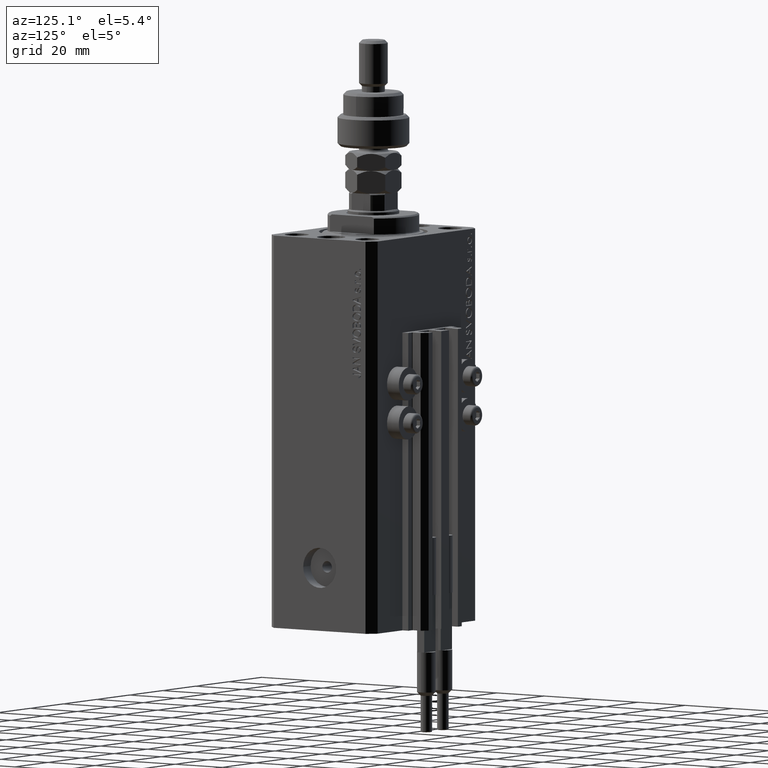
[diagram: clean part render]
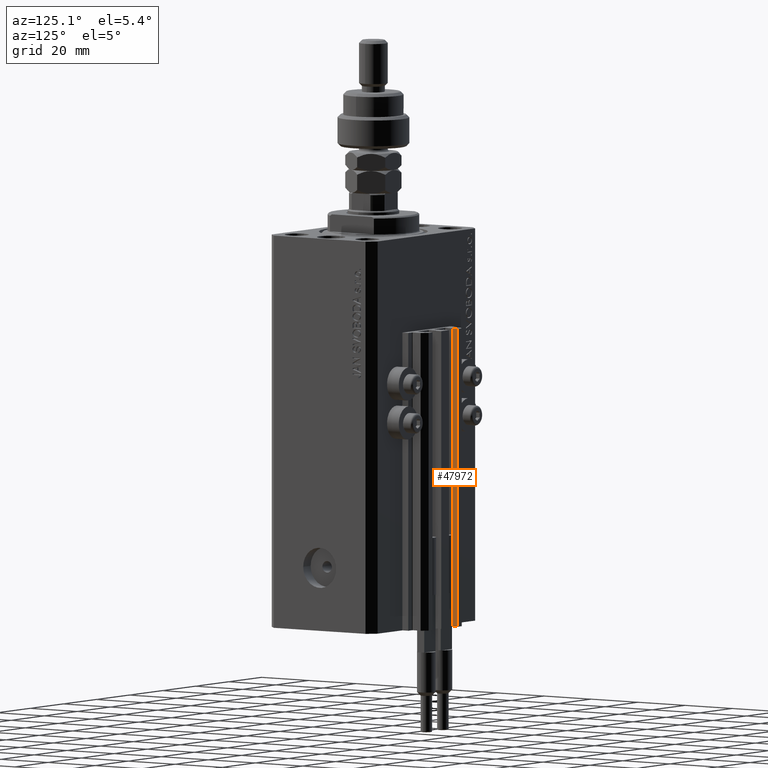
[diagram: same view with one face highlighted and labeled with its STEP entity id]
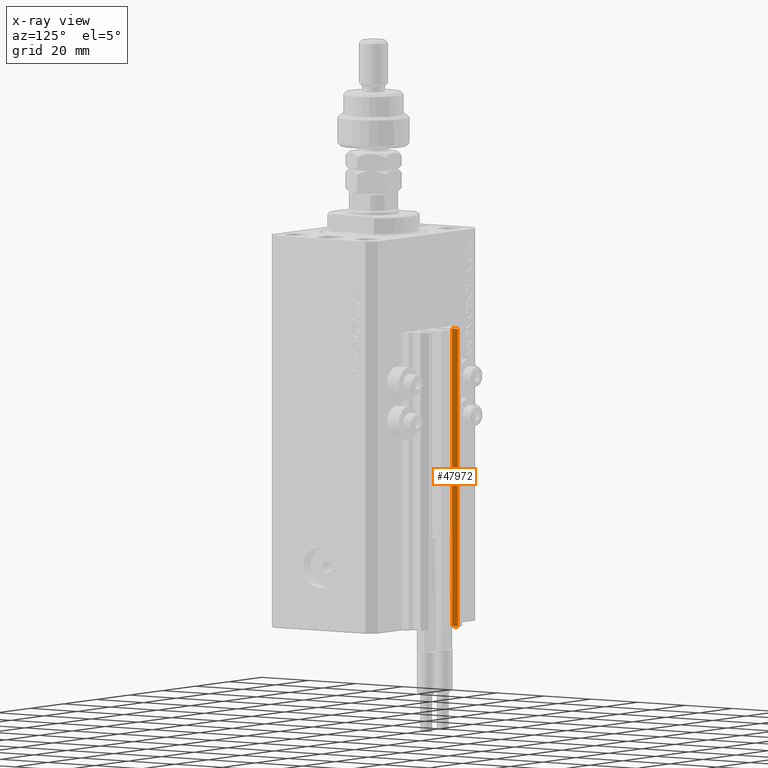
[diagram: x-ray of the same camera — body ghosted, the highlighted face saturated]
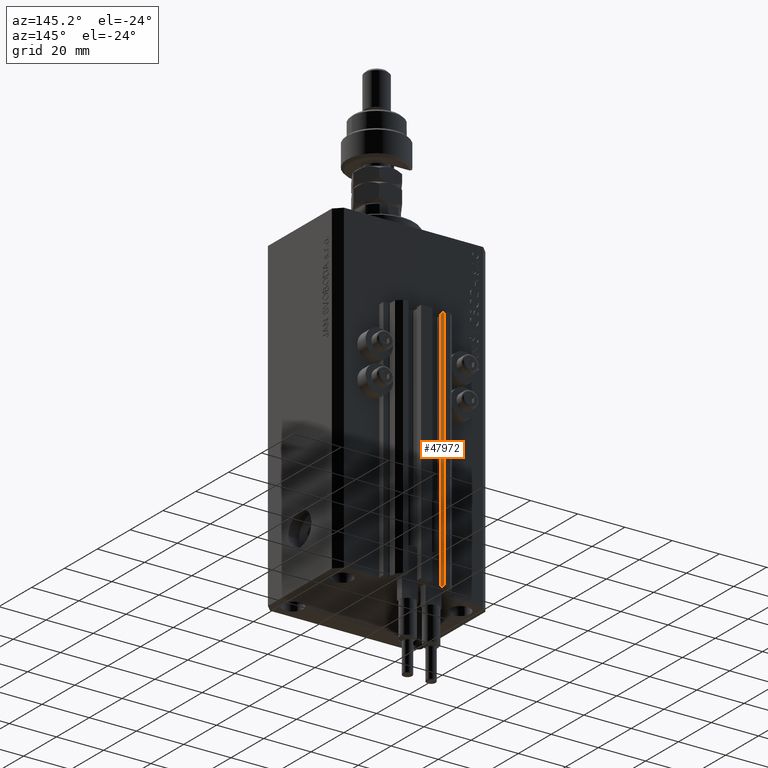
[diagram: same view with one face highlighted and labeled with its STEP entity id]
A machine part, auxiliary view. The second image highlights one B-rep face of the part: STEP entity #47972.
The next image is the same camera in x-ray: the body ghosted, the highlighted face saturated — about 0% of this face is hidden behind the body in this view.
A second angle (auxiliary view) of the same face is appended — the face is thin or edge-on in the first view.
In plain terms, the highlighted planar face has unit normal (1, 0, 0).
Its self-contained STEP definition (entity closure, byte-faithful):
#989 = CARTESIAN_POINT ( 'NONE',  ( -7.650000000000000355, 28.09999999999948628, -137.0000000000000000 ) ) ;
#2752 = DIRECTION ( 'NONE',  ( 0.000000000000000000, 0.000000000000000000, 1.000000000000000000 ) ) ;
#4240 = VECTOR ( 'NONE', #20257, 1000.000000000000000 ) ;
#4558 = VERTEX_POINT ( 'NONE', #14228 ) ;
#5295 = CARTESIAN_POINT ( 'NONE',  ( -7.650000000000000355, 30.49999999999948486, -33.00000000000000000 ) ) ;
#5353 = FACE_OUTER_BOUND ( 'NONE', #31506, .T. ) ;
#5961 = ORIENTED_EDGE ( 'NONE', *, *, #10646, .F. ) ;
#7359 = LINE ( 'NONE', #38216, #40151 ) ;
#8954 = DIRECTION ( 'NONE',  ( 1.000000000000000000, 0.000000000000000000, 0.000000000000000000 ) ) ;
#9411 = CARTESIAN_POINT ( 'NONE',  ( -7.650000000000000355, 28.09999999999948628, -33.00000000000000000 ) ) ;
#10646 = EDGE_CURVE ( 'NONE', #27830, #39130, #39308, .T. ) ;
#10754 = EDGE_CURVE ( 'NONE', #27830, #4558, #41079, .T. ) ;
#10924 = VECTOR ( 'NONE', #48250, 1000.000000000000000 ) ;
#14228 = CARTESIAN_POINT ( 'NONE',  ( -7.650000000000000355, 30.49999999999948486, -137.0000000000000000 ) ) ;
#18809 = ORIENTED_EDGE ( 'NONE', *, *, #40724, .F. ) ;
#20257 = DIRECTION ( 'NONE',  ( 0.000000000000000000, 0.000000000000000000, 1.000000000000000000 ) ) ;
#24639 = DIRECTION ( 'NONE',  ( 0.000000000000000000, 0.000000000000000000, -1.000000000000000000 ) ) ;
#25136 = CARTESIAN_POINT ( 'NONE',  ( -7.650000000000000355, 28.09999999999948628, -137.0000000000000000 ) ) ;
#27421 = EDGE_CURVE ( 'NONE', #4558, #28580, #7359, .T. ) ;
#27830 = VERTEX_POINT ( 'NONE', #49118 ) ;
#28580 = VERTEX_POINT ( 'NONE', #5295 ) ;
#29227 = DIRECTION ( 'NONE',  ( 0.000000000000000000, 1.000000000000000000, 0.000000000000000000 ) ) ;
#29742 = PLANE ( 'NONE',  #35844 ) ;
#31506 = EDGE_LOOP ( 'NONE', ( #18809, #5961, #42631, #35047 ) ) ;
#32544 = LINE ( 'NONE', #9411, #10924 ) ;
#35047 = ORIENTED_EDGE ( 'NONE', *, *, #27421, .T. ) ;
#35844 = AXIS2_PLACEMENT_3D ( 'NONE', #41335, #8954, #24639 ) ;
#37067 = VECTOR ( 'NONE', #29227, 1000.000000000000000 ) ;
#38216 = CARTESIAN_POINT ( 'NONE',  ( -7.650000000000000355, 30.49999999999948486, -137.0000000000000000 ) ) ;
#39130 = VERTEX_POINT ( 'NONE', #50370 ) ;
#39308 = LINE ( 'NONE', #989, #4240 ) ;
#40151 = VECTOR ( 'NONE', #2752, 1000.000000000000000 ) ;
#40724 = EDGE_CURVE ( 'NONE', #39130, #28580, #32544, .T. ) ;
#41079 = LINE ( 'NONE', #25136, #37067 ) ;
#41335 = CARTESIAN_POINT ( 'NONE',  ( -7.650000000000000355, 28.09999999999948628, -137.0000000000000000 ) ) ;
#42631 = ORIENTED_EDGE ( 'NONE', *, *, #10754, .T. ) ;
#47972 = ADVANCED_FACE ( 'NONE', ( #5353 ), #29742, .T. ) ;
#48250 = DIRECTION ( 'NONE',  ( 0.000000000000000000, 1.000000000000000000, 0.000000000000000000 ) ) ;
#49118 = CARTESIAN_POINT ( 'NONE',  ( -7.650000000000000355, 28.09999999999948628, -137.0000000000000000 ) ) ;
#50370 = CARTESIAN_POINT ( 'NONE',  ( -7.650000000000000355, 28.09999999999948628, -33.00000000000000000 ) ) ;